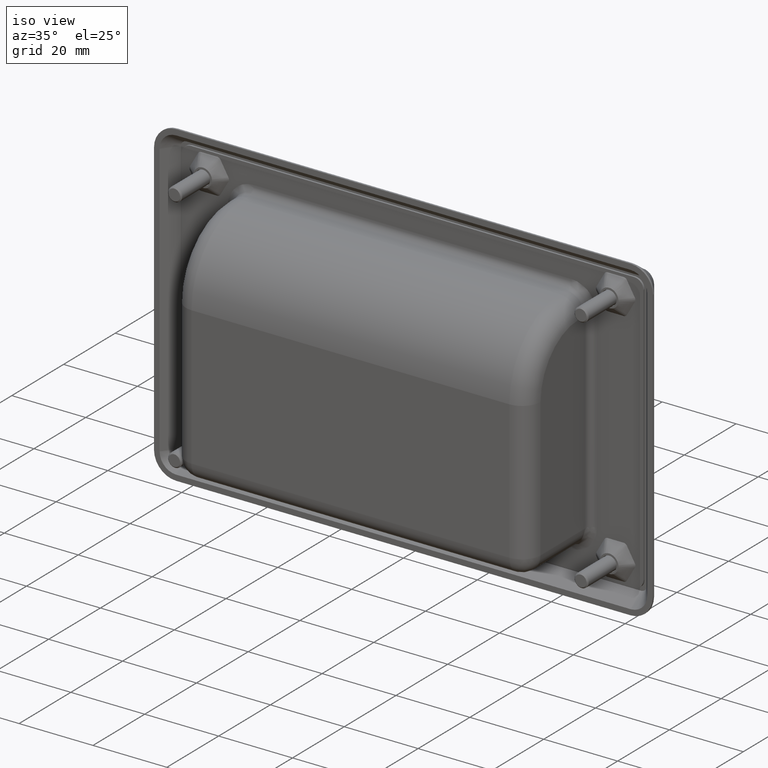
[diagram: clean part render]
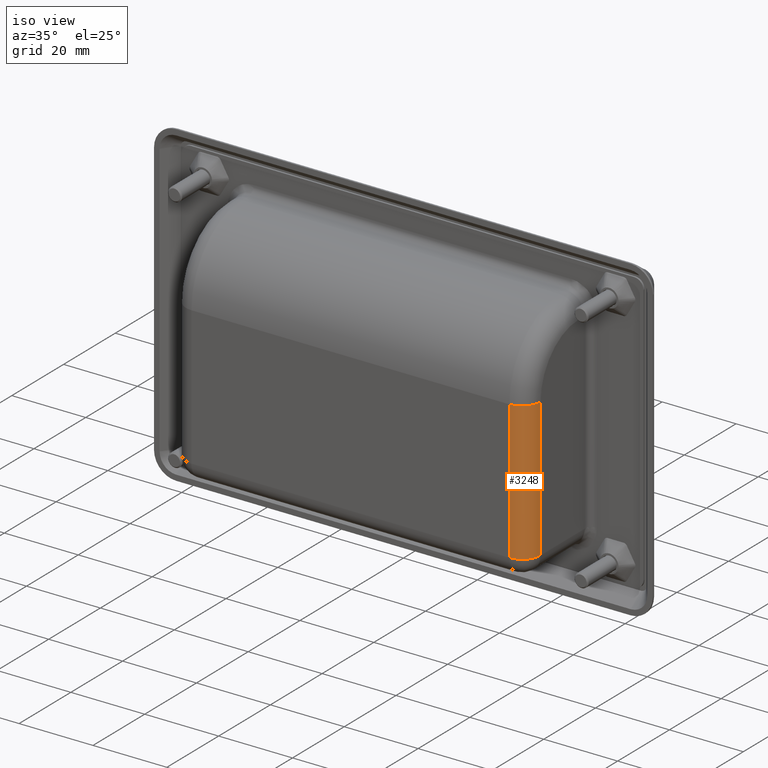
[diagram: same view with one face highlighted and labeled with its STEP entity id]
A machine part, iso view. The second image highlights one B-rep face of the part: STEP entity #3248.
In plain terms, the highlighted cylindrical surface (edge-blend (fillet) strip) has radius 5 mm, axis along (-0, 0, 1).
Its self-contained STEP definition (entity closure, byte-faithful):
#433=FACE_OUTER_BOUND('',#657,.T.);
#657=EDGE_LOOP('',(#2905,#2906,#2907,#2908));
#915=LINE('',#7230,#1159);
#916=LINE('',#7231,#1160);
#1159=VECTOR('',#4316,37.5);
#1160=VECTOR('',#4317,37.5);
#1318=CIRCLE('',#3530,5.);
#1320=CIRCLE('',#3534,5.);
#1610=VERTEX_POINT('',#7189);
#1620=VERTEX_POINT('',#7214);
#1623=VERTEX_POINT('',#7224);
#1624=VERTEX_POINT('',#7225);
#2056=EDGE_CURVE('',#1620,#1610,#1318,.F.);
#2060=EDGE_CURVE('',#1623,#1624,#1320,.T.);
#2063=EDGE_CURVE('',#1623,#1620,#915,.T.);
#2064=EDGE_CURVE('',#1610,#1624,#916,.T.);
#2905=ORIENTED_EDGE('',*,*,#2060,.F.);
#2906=ORIENTED_EDGE('',*,*,#2063,.T.);
#2907=ORIENTED_EDGE('',*,*,#2056,.T.);
#2908=ORIENTED_EDGE('',*,*,#2064,.T.);
#3068=CYLINDRICAL_SURFACE('',#3537,5.);
#3248=ADVANCED_FACE('',(#433),#3068,.T.);
#3530=AXIS2_PLACEMENT_3D('',#7216,#4298,#4299);
#3534=AXIS2_PLACEMENT_3D('',#7226,#4308,#4309);
#3537=AXIS2_PLACEMENT_3D('',#7229,#4314,#4315);
#4298=DIRECTION('center_axis',(0.,0.,-1.));
#4299=DIRECTION('ref_axis',(0.,-1.,0.));
#4308=DIRECTION('center_axis',(0.,0.,1.));
#4309=DIRECTION('ref_axis',(0.,-1.,0.));
#4314=DIRECTION('center_axis',(0.,0.,1.));
#4315=DIRECTION('ref_axis',(0.707106781186548,-0.707106781186548,0.));
#4316=DIRECTION('',(0.,0.,-1.));
#4317=DIRECTION('',(0.,0.,1.));
#7189=CARTESIAN_POINT('',(48.,-19.,-26.));
#7214=CARTESIAN_POINT('',(43.,-24.,-26.));
#7216=CARTESIAN_POINT('Origin',(43.,-19.,-26.));
#7224=CARTESIAN_POINT('',(43.,-24.,11.5));
#7225=CARTESIAN_POINT('',(48.,-19.,11.5));
#7226=CARTESIAN_POINT('Origin',(43.,-19.,11.5));
#7229=CARTESIAN_POINT('Origin',(43.,-19.,-15.5));
#7230=CARTESIAN_POINT('',(43.,-24.,-15.5));
#7231=CARTESIAN_POINT('',(48.,-19.,-15.5));